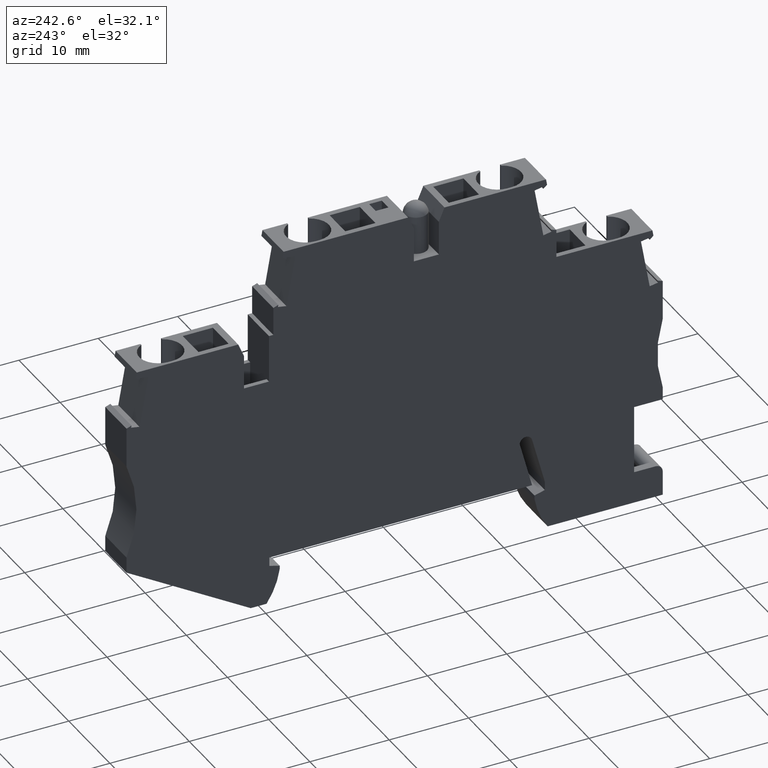
[diagram: clean part render]
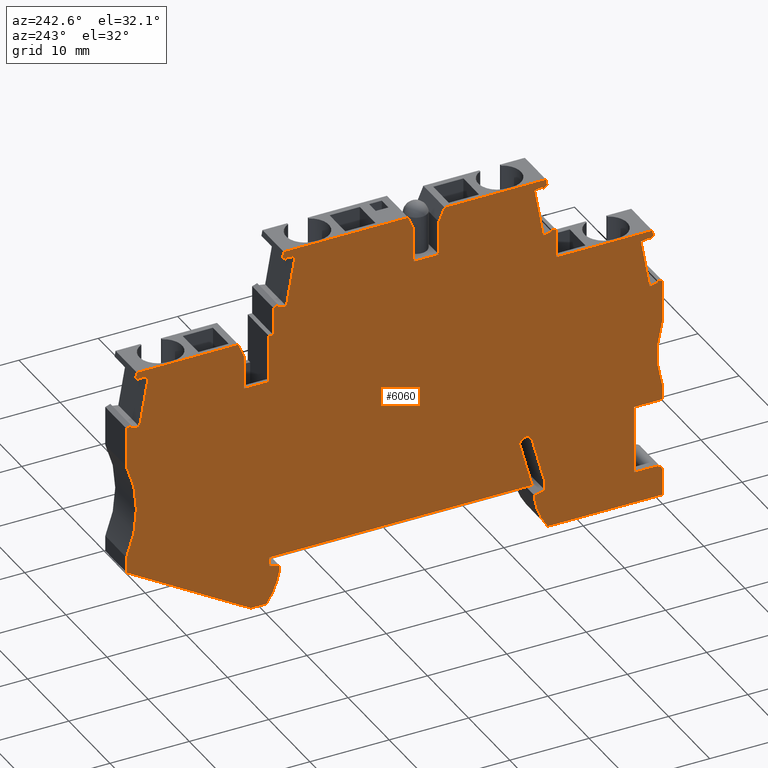
[diagram: same view with one face highlighted and labeled with its STEP entity id]
A machine part, auxiliary view. The second image highlights one B-rep face of the part: STEP entity #6060.
In plain terms, the highlighted planar face has unit normal (1, 0, 0).
Its self-contained STEP definition (entity closure, byte-faithful):
#10=CARTESIAN_POINT('',(184.868635760428,2.4967138221702,48.52));
#20=DIRECTION('',(0.,0.,1.));
#30=DIRECTION('',(1.,0.,0.));
#40=AXIS2_PLACEMENT_3D('',#10,#20,#30);
#50=PLANE('',#40);
#60=CARTESIAN_POINT('',(151.902610356643,2.99671382217021,48.52));
#70=DIRECTION('',(0.25881904510258,0.965925826289053,0.));
#80=VECTOR('',#70,1.);
#90=LINE('',#60,#80);
#100=CARTESIAN_POINT('',(151.768635760428,2.49671382217025,48.52));
#110=VERTEX_POINT('',#100);
#120=CARTESIAN_POINT('',(153.346169499709,8.38414988782211,48.52));
#130=VERTEX_POINT('',#120);
#140=EDGE_CURVE('',#110,#130,#90,.T.);
#150=ORIENTED_EDGE('',*,*,#140,.T.);
#160=CARTESIAN_POINT('',(14.196323,2.49671382217026,48.52));
#170=DIRECTION('',(-1.,6.93889390390723E-17,0.));
#180=VECTOR('',#170,1.);
#190=LINE('',#160,#180);
#200=CARTESIAN_POINT('',(184.868635760428,2.49671382217025,48.52));
#210=VERTEX_POINT('',#200);
#220=EDGE_CURVE('',#210,#110,#190,.T.);
#230=ORIENTED_EDGE('',*,*,#220,.T.);
#240=CARTESIAN_POINT('',(184.868635760428,-15.1764489999999,48.52));
#250=DIRECTION('',(6.93889390390723E-17,1.,0.));
#260=VECTOR('',#250,1.);
#270=LINE('',#240,#260);
#280=CARTESIAN_POINT('',(184.868635760428,1.39671382217034,48.52));
#290=VERTEX_POINT('',#280);
#300=EDGE_CURVE('',#290,#210,#270,.T.);
#310=ORIENTED_EDGE('',*,*,#300,.T.);
#320=CARTESIAN_POINT('',(14.196323,-44.3347945523262,48.52));
#330=DIRECTION('',(0.965925826289086,0.258819045102457,0.));
#340=VECTOR('',#330,1.);
#350=LINE('',#320,#340);
#360=CARTESIAN_POINT('',(183.568635760428,1.04837987200994,48.52));
#370=VERTEX_POINT('',#360);
#380=EDGE_CURVE('',#370,#290,#350,.T.);
#390=ORIENTED_EDGE('',*,*,#380,.T.);
#400=CARTESIAN_POINT('',(183.568635760417,-15.1764489999999,48.52));
#410=DIRECTION('',(6.90295043348499E-13,1.,0.));
#420=VECTOR('',#410,1.);
#430=LINE('',#400,#420);
#440=CARTESIAN_POINT('',(183.568635760428,0.596713822169844,48.52));
#450=VERTEX_POINT('',#440);
#460=EDGE_CURVE('',#450,#370,#430,.T.);
#470=ORIENTED_EDGE('',*,*,#460,.T.);
#480=CARTESIAN_POINT('',(192.962608439804,2.01208561046785,48.52));
#490=DIRECTION('',(0.,0.,-1.));
#500=DIRECTION('',(-1.,6.93889390390723E-17,0.));
#510=AXIS2_PLACEMENT_3D('',#480,#490,#500);
#520=CIRCLE('',#510,9.499999999999);
#530=CARTESIAN_POINT('',(185.22757941356,-3.50328617782973,48.52));
#540=VERTEX_POINT('',#530);
#550=EDGE_CURVE('',#540,#450,#520,.T.);
#560=ORIENTED_EDGE('',*,*,#550,.T.);
#570=CARTESIAN_POINT('',(14.196323,-3.50328617781982,48.52));
#580=DIRECTION('',(-1.,5.79813974610488E-14,0.));
#590=VECTOR('',#580,1.);
#600=LINE('',#570,#590);
#610=CARTESIAN_POINT('',(187.212776734527,-3.50328617782985,48.52));
#620=VERTEX_POINT('',#610);
#630=EDGE_CURVE('',#620,#540,#600,.T.);
#640=ORIENTED_EDGE('',*,*,#630,.T.);
#650=CARTESIAN_POINT('',(14.196323,-105.174575611719,48.52));
#660=DIRECTION('',(-0.862158641431198,-0.5066384085376,0.));
#670=VECTOR('',#660,1.);
#680=LINE('',#650,#670);
#690=CARTESIAN_POINT('',(202.868635760428,5.69671382217545,48.52));
#700=VERTEX_POINT('',#690);
#710=EDGE_CURVE('',#700,#620,#680,.T.);
#720=ORIENTED_EDGE('',*,*,#710,.T.);
#730=CARTESIAN_POINT('',(202.868635760428,-15.1764489999999,48.52));
#740=DIRECTION('',(-1.3062127899644E-16,-1.,0.));
#750=VECTOR('',#740,1.);
#760=LINE('',#730,#750);
#770=CARTESIAN_POINT('',(202.868635760428,7.69671382216893,48.52));
#780=VERTEX_POINT('',#770);
#790=EDGE_CURVE('',#780,#700,#760,.T.);
#800=ORIENTED_EDGE('',*,*,#790,.T.);
#810=CARTESIAN_POINT('',(216.616362845295,13.696713822169,48.52));
#820=DIRECTION('',(0.,0.,1.));
#830=DIRECTION('',(1.,-6.93889390390723E-17,0.));
#840=AXIS2_PLACEMENT_3D('',#810,#820,#830);
#850=CIRCLE('',#840,15.);
#860=CARTESIAN_POINT('',(202.86863574573,19.6967137884929,48.52));
#870=VERTEX_POINT('',#860);
#880=EDGE_CURVE('',#870,#780,#850,.T.);
#890=ORIENTED_EDGE('',*,*,#880,.T.);
#900=CARTESIAN_POINT('',(202.86863574573,-15.1764489999999,48.52));
#910=DIRECTION('',(-6.93889390390723E-17,-1.,0.));
#920=VECTOR('',#910,1.);
#930=LINE('',#900,#920);
#940=CARTESIAN_POINT('',(202.86863574573,24.7030731418167,48.52));
#950=VERTEX_POINT('',#940);
#960=EDGE_CURVE('',#950,#870,#930,.T.);
#970=ORIENTED_EDGE('',*,*,#960,.T.);
#980=CARTESIAN_POINT('',(14.196323,93.3741790099297,48.52));
#990=DIRECTION('',(0.939692620788304,-0.342020143319087,0.));
#1000=VECTOR('',#990,1.);
#1010=LINE('',#980,#1000);
#1020=CARTESIAN_POINT('',(202.235827724333,24.9333964256054,48.52));
#1030=VERTEX_POINT('',#1020);
#1040=EDGE_CURVE('',#1030,#950,#1010,.T.);
#1050=ORIENTED_EDGE('',*,*,#1040,.T.);
#1060=CARTESIAN_POINT('',(209.308275664955,-15.1764489999999,48.52));
#1070=DIRECTION('',(0.173648177667931,-0.984807753012032,0.));
#1080=VECTOR('',#1070,1.);
#1090=LINE('',#1060,#1080);
#1100=CARTESIAN_POINT('',(202.283113446507,24.6652257691104,48.52));
#1110=VERTEX_POINT('',#1100);
#1120=EDGE_CURVE('',#1030,#1110,#1090,.T.);
#1130=ORIENTED_EDGE('',*,*,#1120,.F.);
#1140=CARTESIAN_POINT('',(14.196323,-8.49955010156946,48.52));
#1150=DIRECTION('',(-0.984807753012117,-0.173648177667446,0.));
#1160=VECTOR('',#1150,1.);
#1170=LINE('',#1140,#1160);
#1180=CARTESIAN_POINT('',(201.229369150783,24.479422219006,48.52));
#1190=VERTEX_POINT('',#1180);
#1200=EDGE_CURVE('',#1110,#1190,#1170,.T.);
#1210=ORIENTED_EDGE('',*,*,#1200,.F.);
#1220=CARTESIAN_POINT('',(208.221769190198,-15.1764489999999,48.52));
#1230=DIRECTION('',(0.17364817766702,-0.984807753012192,0.));
#1240=VECTOR('',#1230,1.);
#1250=LINE('',#1220,#1240);
#1260=CARTESIAN_POINT('',(200.131044427039,30.7083312568086,48.52));
#1270=VERTEX_POINT('',#1260);
#1280=EDGE_CURVE('',#1270,#1190,#1250,.T.);
#1290=ORIENTED_EDGE('',*,*,#1280,.T.);
#1300=CARTESIAN_POINT('',(14.196323,-2.07697678126756,48.52));
#1310=DIRECTION('',(0.984807753012229,0.173648177666812,0.));
#1320=VECTOR('',#1310,1.);
#1330=LINE('',#1300,#1320);
#1340=CARTESIAN_POINT('',(201.184788722763,30.8941348069122,48.52));
#1350=VERTEX_POINT('',#1340);
#1360=EDGE_CURVE('',#1270,#1350,#1330,.T.);
#1370=ORIENTED_EDGE('',*,*,#1360,.F.);
#1380=CARTESIAN_POINT('',(209.308275664883,-15.1764489999999,48.52));
#1390=DIRECTION('',(0.173648177666326,-0.984807753012315,0.));
#1400=VECTOR('',#1390,1.);
#1410=LINE('',#1380,#1400);
#1420=CARTESIAN_POINT('',(201.232074444938,30.625964150414,48.52));
#1430=VERTEX_POINT('',#1420);
#1440=EDGE_CURVE('',#1350,#1430,#1410,.T.);
#1450=ORIENTED_EDGE('',*,*,#1440,.F.);
#1460=CARTESIAN_POINT('',(14.196323,-126.315665903762,48.52));
#1470=DIRECTION('',(-0.766044443119454,-0.642787609685972,0.));
#1480=VECTOR('',#1470,1.);
#1490=LINE('',#1460,#1480);
#1500=CARTESIAN_POINT('',(201.70088696831,31.0193445658665,48.52));
#1510=VERTEX_POINT('',#1500);
#1520=EDGE_CURVE('',#1510,#1430,#1490,.T.);
#1530=ORIENTED_EDGE('',*,*,#1520,.T.);
#1540=CARTESIAN_POINT('',(209.846451769164,-15.1764489999999,48.52));
#1550=DIRECTION('',(0.173648177665959,-0.984807753012379,0.));
#1560=VECTOR('',#1550,1.);
#1570=LINE('',#1540,#1560);
#1580=CARTESIAN_POINT('',(201.572632143486,31.7467138221736,48.52));
#1590=VERTEX_POINT('',#1580);
#1600=EDGE_CURVE('',#1590,#1510,#1570,.T.);
#1610=ORIENTED_EDGE('',*,*,#1600,.T.);
#1620=CARTESIAN_POINT('',(14.196323,31.7467138221519,48.52));
#1630=DIRECTION('',(1.,1.15435438985401E-13,0.));
#1640=VECTOR('',#1630,1.);
#1650=LINE('',#1620,#1640);
#1660=CARTESIAN_POINT('',(188.787135479711,31.7467138221721,48.52));
#1670=VERTEX_POINT('',#1660);
#1680=EDGE_CURVE('',#1670,#1590,#1650,.T.);
#1690=ORIENTED_EDGE('',*,*,#1680,.T.);
#1700=CARTESIAN_POINT('',(168.955206470576,-15.1764489999999,48.52));
#1710=DIRECTION('',(-0.389303997086923,-0.921109330021222,0.));
#1720=VECTOR('',#1710,1.);
#1730=LINE('',#1700,#1720);
#1740=CARTESIAN_POINT('',(188.068635451695,30.0467130916932,48.52));
#1750=VERTEX_POINT('',#1740);
#1760=EDGE_CURVE('',#1670,#1750,#1730,.T.);
#1770=ORIENTED_EDGE('',*,*,#1760,.F.);
#1780=CARTESIAN_POINT('',(188.068635451695,-15.1764489999999,48.52));
#1790=DIRECTION('',(-9.18709552877317E-15,1.,0.));
#1800=VECTOR('',#1790,1.);
#1810=LINE('',#1780,#1800);
#1820=CARTESIAN_POINT('',(188.068635451695,25.7467138221752,48.52));
#1830=VERTEX_POINT('',#1820);
#1840=EDGE_CURVE('',#1830,#1750,#1810,.T.);
#1850=ORIENTED_EDGE('',*,*,#1840,.T.);
#1860=CARTESIAN_POINT('',(14.196323,25.7467138221769,48.52));
#1870=DIRECTION('',(-1.,9.92261828258734E-15,0.));
#1880=VECTOR('',#1870,1.);
#1890=LINE('',#1860,#1880);
#1900=CARTESIAN_POINT('',(184.918635451675,25.7467138221752,48.52));
#1910=VERTEX_POINT('',#1900);
#1920=EDGE_CURVE('',#1830,#1910,#1890,.T.);
#1930=ORIENTED_EDGE('',*,*,#1920,.F.);
#1940=CARTESIAN_POINT('',(184.918635451675,-15.1764489999999,48.52));
#1950=DIRECTION('',(2.692290834716E-15,-1.,0.));
#1960=VECTOR('',#1950,1.);
#1970=LINE('',#1940,#1960);
#1980=CARTESIAN_POINT('',(184.918635451675,31.7467138221735,
48.5199999999999));
#1990=VERTEX_POINT('',#1980);
#2000=EDGE_CURVE('',#1990,#1910,#1970,.T.);
#2010=ORIENTED_EDGE('',*,*,#2000,.T.);
#2020=CARTESIAN_POINT('',(184.368635726432,31.7467138221735,
48.5199999999999));
#2030=DIRECTION('',(1.,0.,0.));
#2040=VECTOR('',#2030,1.);
#2050=LINE('',#2020,#2040);
#2060=CARTESIAN_POINT('',(184.368635726432,31.7467138221735,
48.5199999999999));
#2070=VERTEX_POINT('',#2060);
#2080=EDGE_CURVE('',#2070,#1990,#2050,.T.);
#2090=ORIENTED_EDGE('',*,*,#2080,.T.);
#2100=CARTESIAN_POINT('',(184.368635726432,-15.1764489999999,48.52));
#2110=DIRECTION('',(-5.46784839627889E-15,1.,0.));
#2120=VECTOR('',#2110,1.);
#2130=LINE('',#2100,#2120);
#2140=CARTESIAN_POINT('',(184.368635726432,35.3030731488271,48.52));
#2150=VERTEX_POINT('',#2140);
#2160=EDGE_CURVE('',#2070,#2150,#2130,.T.);
#2170=ORIENTED_EDGE('',*,*,#2160,.F.);
#2180=CARTESIAN_POINT('',(14.196323,97.240729676124,48.52));
#2190=DIRECTION('',(0.939692620788329,-0.342020143319018,0.));
#2200=VECTOR('',#2190,1.);
#2210=LINE('',#2180,#2200);
#2220=CARTESIAN_POINT('',(183.735827724316,35.5333964255976,48.52));
#2230=VERTEX_POINT('',#2220);
#2240=EDGE_CURVE('',#2230,#2150,#2210,.T.);
#2250=ORIENTED_EDGE('',*,*,#2240,.T.);
#2260=CARTESIAN_POINT('',(192.677341660458,-15.1764489999999,48.52));
#2270=DIRECTION('',(0.173648177667931,-0.984807753012032,0.));
#2280=VECTOR('',#2270,1.);
#2290=LINE('',#2260,#2280);
#2300=CARTESIAN_POINT('',(183.783113446491,35.2652257691027,48.52));
#2310=VERTEX_POINT('',#2300);
#2320=EDGE_CURVE('',#2230,#2310,#2290,.T.);
#2330=ORIENTED_EDGE('',*,*,#2320,.F.);
#2340=CARTESIAN_POINT('',(14.196323,5.36249904154229,48.52));
#2350=DIRECTION('',(-0.984807753012117,-0.173648177667446,0.));
#2360=VECTOR('',#2350,1.);
#2370=LINE('',#2340,#2360);
#2380=CARTESIAN_POINT('',(182.729369150767,35.0794222189983,48.52));
#2390=VERTEX_POINT('',#2380);
#2400=EDGE_CURVE('',#2310,#2390,#2370,.T.);
#2410=ORIENTED_EDGE('',*,*,#2400,.F.);
#2420=CARTESIAN_POINT('',(191.590835185692,-15.1764489999999,48.52));
#2430=DIRECTION('',(0.173648177667046,-0.984807753012188,0.));
#2440=VECTOR('',#2430,1.);
#2450=LINE('',#2420,#2440);
#2460=CARTESIAN_POINT('',(181.631044427023,41.3083312568009,48.52));
#2470=VERTEX_POINT('',#2460);
#2480=EDGE_CURVE('',#2470,#2390,#2450,.T.);
#2490=ORIENTED_EDGE('',*,*,#2480,.T.);
#2500=CARTESIAN_POINT('',(14.196323,11.7850723618319,48.52));
#2510=DIRECTION('',(0.984807753012229,0.173648177666812,0.));
#2520=VECTOR('',#2510,1.);
#2530=LINE('',#2500,#2520);
#2540=CARTESIAN_POINT('',(182.684788722746,41.4941348069045,48.52));
#2550=VERTEX_POINT('',#2540);
#2560=EDGE_CURVE('',#2470,#2550,#2530,.T.);
#2570=ORIENTED_EDGE('',*,*,#2560,.F.);
#2580=CARTESIAN_POINT('',(192.677341660368,-15.1764489999999,48.52));
#2590=DIRECTION('',(0.173648177666326,-0.984807753012315,0.));
#2600=VECTOR('',#2590,1.);
#2610=LINE('',#2580,#2600);
#2620=CARTESIAN_POINT('',(182.732074444921,41.2259641504061,48.52));
#2630=VERTEX_POINT('',#2620);
#2640=EDGE_CURVE('',#2550,#2630,#2610,.T.);
#2650=ORIENTED_EDGE('',*,*,#2640,.F.);
#2660=CARTESIAN_POINT('',(14.196323,-100.192322726944,48.52));
#2670=DIRECTION('',(-0.76604444311958,-0.642787609685822,0.));
#2680=VECTOR('',#2670,1.);
#2690=LINE('',#2660,#2680);
#2700=CARTESIAN_POINT('',(183.200886968294,41.6193445658591,48.52));
#2710=VERTEX_POINT('',#2700);
#2720=EDGE_CURVE('',#2710,#2630,#2690,.T.);
#2730=ORIENTED_EDGE('',*,*,#2720,.T.);
#2740=CARTESIAN_POINT('',(193.215517764735,-15.1764489999999,48.52));
#2750=DIRECTION('',(0.173648177667472,-0.984807753012113,0.));
#2760=VECTOR('',#2750,1.);
#2770=LINE('',#2740,#2760);
#2780=CARTESIAN_POINT('',(183.072632143469,42.3467138221672,48.52));
#2790=VERTEX_POINT('',#2780);
#2800=EDGE_CURVE('',#2790,#2710,#2770,.T.);
#2810=ORIENTED_EDGE('',*,*,#2800,.T.);
#2820=CARTESIAN_POINT('',(14.196323,42.3467138221477,48.52));
#2830=DIRECTION('',(-1.,-1.15435438985401E-13,0.));
#2840=VECTOR('',#2830,1.);
#2850=LINE('',#2820,#2840);
#2860=CARTESIAN_POINT('',(167.387135170976,42.3467138221654,48.52));
#2870=VERTEX_POINT('',#2860);
#2880=EDGE_CURVE('',#2790,#2870,#2850,.T.);
#2890=ORIENTED_EDGE('',*,*,#2880,.F.);
#2900=CARTESIAN_POINT('',(143.075149088678,-15.1764489999999,48.52));
#2910=DIRECTION('',(-0.389303997086923,-0.921109330021222,0.));
#2920=VECTOR('',#2910,1.);
#2930=LINE('',#2900,#2920);
#2940=CARTESIAN_POINT('',(166.668635451695,40.6467138221657,48.52));
#2950=VERTEX_POINT('',#2940);
#2960=EDGE_CURVE('',#2870,#2950,#2930,.T.);
#2970=ORIENTED_EDGE('',*,*,#2960,.F.);
#2980=CARTESIAN_POINT('',(166.668635451695,-15.1764489999999,48.52));
#2990=DIRECTION('',(-9.18709552877317E-15,1.,0.));
#3000=VECTOR('',#2990,1.);
#3010=LINE('',#2980,#3000);
#3020=CARTESIAN_POINT('',(166.668635451695,36.3467138221752,48.52));
#3030=VERTEX_POINT('',#3020);
#3040=EDGE_CURVE('',#3030,#2950,#3010,.T.);
#3050=ORIENTED_EDGE('',*,*,#3040,.T.);
#3060=CARTESIAN_POINT('',(14.196323,36.3467138221767,48.52));
#3070=DIRECTION('',(-1.,9.92261828258734E-15,0.));
#3080=VECTOR('',#3070,1.);
#3090=LINE('',#3060,#3080);
#3100=CARTESIAN_POINT('',(163.518635451675,36.3467138221752,48.52));
#3110=VERTEX_POINT('',#3100);
#3120=EDGE_CURVE('',#3030,#3110,#3090,.T.);
#3130=ORIENTED_EDGE('',*,*,#3120,.F.);
#3140=CARTESIAN_POINT('',(163.518635451675,-15.1764489999999,48.52));
#3150=DIRECTION('',(2.692290834716E-15,-1.,0.));
#3160=VECTOR('',#3150,1.);
#3170=LINE('',#3140,#3160);
#3180=CARTESIAN_POINT('',(163.518635451675,40.6467138221659,48.52));
#3190=VERTEX_POINT('',#3180);
#3200=EDGE_CURVE('',#3190,#3110,#3170,.T.);
#3210=ORIENTED_EDGE('',*,*,#3200,.T.);
#3220=CARTESIAN_POINT('',(187.112121814692,-15.1764489999999,48.52));
#3230=DIRECTION('',(-0.389303997086923,0.921109330021222,0.));
#3240=VECTOR('',#3230,1.);
#3250=LINE('',#3220,#3240);
#3260=CARTESIAN_POINT('',(162.800135732393,42.3467138221671,48.52));
#3270=VERTEX_POINT('',#3260);
#3280=EDGE_CURVE('',#3190,#3270,#3250,.T.);
#3290=ORIENTED_EDGE('',*,*,#3280,.F.);
#3300=CARTESIAN_POINT('',(14.196323,42.3467138221843,48.52));
#3310=DIRECTION('',(-1.,1.15574216863479E-13,0.));
#3320=VECTOR('',#3310,1.);
#3330=LINE('',#3300,#3320);
#3340=CARTESIAN_POINT('',(150.014638759883,42.3467138221686,48.52));
#3350=VERTEX_POINT('',#3340);
#3360=EDGE_CURVE('',#3270,#3350,#3330,.T.);
#3370=ORIENTED_EDGE('',*,*,#3360,.F.);
#3380=CARTESIAN_POINT('',(139.871753138634,-15.1764489999999,48.52));
#3390=DIRECTION('',(0.173648177667169,0.984807753012166,0.));
#3400=VECTOR('',#3390,1.);
#3410=LINE('',#3380,#3400);
#3420=CARTESIAN_POINT('',(149.886383935057,41.6193445658553,48.52));
#3430=VERTEX_POINT('',#3420);
#3440=EDGE_CURVE('',#3430,#3350,#3410,.T.);
#3450=ORIENTED_EDGE('',*,*,#3440,.T.);
#3460=CARTESIAN_POINT('',(14.196323,155.476824650563,48.52));
#3470=DIRECTION('',(-0.766044443119871,0.642787609685476,0.));
#3480=VECTOR('',#3470,1.);
#3490=LINE('',#3460,#3480);
#3500=CARTESIAN_POINT('',(150.355196458447,41.2259641503885,48.52));
#3510=VERTEX_POINT('',#3500);
#3520=EDGE_CURVE('',#3510,#3430,#3490,.T.);
#3530=ORIENTED_EDGE('',*,*,#3520,.T.);
#3540=CARTESIAN_POINT('',(140.409929243003,-15.1764489999999,48.52));
#3550=DIRECTION('',(0.173648177666326,0.984807753012315,0.));
#3560=VECTOR('',#3550,1.);
#3570=LINE('',#3540,#3560);
#3580=CARTESIAN_POINT('',(150.402482180624,41.4941348069007,48.52));
#3590=VERTEX_POINT('',#3580);
#3600=EDGE_CURVE('',#3510,#3590,#3570,.T.);
#3610=ORIENTED_EDGE('',*,*,#3600,.F.);
#3620=CARTESIAN_POINT('',(14.196323,65.5109556090998,48.52));
#3630=DIRECTION('',(0.984807753012229,-0.173648177666812,0.));
#3640=VECTOR('',#3630,1.);
#3650=LINE('',#3620,#3640);
#3660=CARTESIAN_POINT('',(151.456226476328,41.3083312568005,48.52));
#3670=VERTEX_POINT('',#3660);
#3680=EDGE_CURVE('',#3590,#3670,#3650,.T.);
#3690=ORIENTED_EDGE('',*,*,#3680,.F.);
#3700=CARTESIAN_POINT('',(141.496435717659,-15.1764489999999,48.52));
#3710=DIRECTION('',(0.173648177667041,0.984807753012189,0.));
#3720=VECTOR('',#3710,1.);
#3730=LINE('',#3700,#3720);
#3740=CARTESIAN_POINT('',(150.357901752584,35.0794222189994,48.52));
#3750=VERTEX_POINT('',#3740);
#3760=EDGE_CURVE('',#3750,#3670,#3730,.T.);
#3770=ORIENTED_EDGE('',*,*,#3760,.T.);
#3780=CARTESIAN_POINT('',(14.196323,59.0883822890139,48.52));
#3790=DIRECTION('',(-0.984807753012117,0.173648177667446,0.));
#3800=VECTOR('',#3790,1.);
#3810=LINE('',#3780,#3800);
#3820=CARTESIAN_POINT('',(149.30415745688,35.2652257691004,48.52));
#3830=VERTEX_POINT('',#3820);
#3840=EDGE_CURVE('',#3750,#3830,#3810,.T.);
#3850=ORIENTED_EDGE('',*,*,#3840,.F.);
#3860=CARTESIAN_POINT('',(140.409929242913,-15.1764489999999,48.52));
#3870=DIRECTION('',(0.173648177667931,0.984807753012032,0.));
#3880=VECTOR('',#3870,1.);
#3890=LINE('',#3860,#3880);
#3900=CARTESIAN_POINT('',(149.351443179055,35.5333964256018,48.52));
#3910=VERTEX_POINT('',#3900);
#3920=EDGE_CURVE('',#3830,#3910,#3890,.T.);
#3930=ORIENTED_EDGE('',*,*,#3920,.F.);
#3940=CARTESIAN_POINT('',(14.196323,-13.6590443271737,48.52));
#3950=DIRECTION('',(0.939692620788304,0.342020143319087,0.));
#3960=VECTOR('',#3950,1.);
#3970=LINE('',#3940,#3960);
#3980=CARTESIAN_POINT('',(148.718635176939,35.3030731488308,48.52));
#3990=VERTEX_POINT('',#3980);
#4000=EDGE_CURVE('',#3990,#3910,#3970,.T.);
#4010=ORIENTED_EDGE('',*,*,#4000,.T.);
#4020=CARTESIAN_POINT('',(148.718635176939,-15.1764489999999,48.52));
#4030=DIRECTION('',(6.93889390390723E-17,1.,0.));
#4040=VECTOR('',#4030,1.);
#4050=LINE('',#4020,#4040);
#4060=CARTESIAN_POINT('',(148.718635176939,31.7467138221615,48.52));
#4070=VERTEX_POINT('',#4060);
#4080=EDGE_CURVE('',#4070,#3990,#4050,.T.);
#4090=ORIENTED_EDGE('',*,*,#4080,.T.);
#4100=CARTESIAN_POINT('',(14.196323,31.746713822177,48.52));
#4110=DIRECTION('',(-1.,1.15574216863479E-13,0.));
#4120=VECTOR('',#4110,1.);
#4130=LINE('',#4100,#4120);
#4140=CARTESIAN_POINT('',(136.614638759881,31.7467138221629,48.52));
#4150=VERTEX_POINT('',#4140);
#4160=EDGE_CURVE('',#4070,#4150,#4130,.T.);
#4170=ORIENTED_EDGE('',*,*,#4160,.F.);
#4180=CARTESIAN_POINT('',(128.340819134138,-15.1764489999999,48.52));
#4190=DIRECTION('',(0.173648177667334,0.984807753012137,0.));
#4200=VECTOR('',#4190,1.);
#4210=LINE('',#4180,#4200);
#4220=CARTESIAN_POINT('',(136.486383925749,31.0193445130692,48.52));
#4230=VERTEX_POINT('',#4220);
#4240=EDGE_CURVE('',#4230,#4150,#4210,.T.);
#4250=ORIENTED_EDGE('',*,*,#4240,.T.);
#4260=CARTESIAN_POINT('',(14.196323,133.632889532351,48.52));
#4270=DIRECTION('',(-0.766044443119474,0.642787609685948,0.));
#4280=VECTOR('',#4270,1.);
#4290=LINE('',#4260,#4280);
#4300=CARTESIAN_POINT('',(136.955196718064,30.6259638719466,48.52));
#4310=VERTEX_POINT('',#4300);
#4320=EDGE_CURVE('',#4310,#4230,#4290,.T.);
#4330=ORIENTED_EDGE('',*,*,#4320,.T.);
#4340=CARTESIAN_POINT('',(128.87899554722,-15.1764489999999,48.52));
#4350=DIRECTION('',(0.173648177666326,0.984807753012315,0.));
#4360=VECTOR('',#4350,1.);
#4370=LINE('',#4340,#4360);
#4380=CARTESIAN_POINT('',(137.002482480031,30.8941347541144,48.52));
#4390=VERTEX_POINT('',#4380);
#4400=EDGE_CURVE('',#4310,#4390,#4370,.T.);
#4410=ORIENTED_EDGE('',*,*,#4400,.F.);
#4420=CARTESIAN_POINT('',(14.196323,52.5481740676152,48.52));
#4430=DIRECTION('',(0.984807753012229,-0.173648177666812,0.));
#4440=VECTOR('',#4430,1.);
#4450=LINE('',#4420,#4440);
#4460=CARTESIAN_POINT('',(138.056226476329,30.7083312568075,48.52));
#4470=VERTEX_POINT('',#4460);
#4480=EDGE_CURVE('',#4390,#4470,#4450,.T.);
#4490=ORIENTED_EDGE('',*,*,#4480,.F.);
#4500=CARTESIAN_POINT('',(129.96550171317,-15.1764489999999,48.52));
#4510=DIRECTION('',(0.173648177667023,0.984807753012192,0.));
#4520=VECTOR('',#4510,1.);
#4530=LINE('',#4500,#4520);
#4540=CARTESIAN_POINT('',(136.957901752586,24.4794222190064,48.52));
#4550=VERTEX_POINT('',#4540);
#4560=EDGE_CURVE('',#4550,#4470,#4530,.T.);
#4570=ORIENTED_EDGE('',*,*,#4560,.T.);
#4580=CARTESIAN_POINT('',(14.196323,46.1256007475204,48.52));
#4590=DIRECTION('',(-0.984807753012117,0.173648177667446,0.));
#4600=VECTOR('',#4590,1.);
#4610=LINE('',#4580,#4600);
#4620=CARTESIAN_POINT('',(135.904157756286,24.6652257163141,48.52));
#4630=VERTEX_POINT('',#4620);
#4640=EDGE_CURVE('',#4550,#4630,#4610,.T.);
#4650=ORIENTED_EDGE('',*,*,#4640,.F.);
#4660=CARTESIAN_POINT('',(128.878995547148,-15.1764489999999,48.52));
#4670=DIRECTION('',(0.173648177667931,0.984807753012032,0.));
#4680=VECTOR('',#4670,1.);
#4690=LINE('',#4660,#4680);
#4700=CARTESIAN_POINT('',(135.951443499635,24.9333964928844,48.52));
#4710=VERTEX_POINT('',#4700);
#4720=EDGE_CURVE('',#4630,#4710,#4690,.T.);
#4730=ORIENTED_EDGE('',*,*,#4720,.F.);
#4740=CARTESIAN_POINT('',(14.196323,-19.3818432374781,48.52));
#4750=DIRECTION('',(0.939692620788387,0.342020143318859,0.));
#4760=VECTOR('',#4750,1.);
#4770=LINE('',#4740,#4760);
#4780=CARTESIAN_POINT('',(135.318635774393,24.7030733168879,48.52));
#4790=VERTEX_POINT('',#4780);
#4800=EDGE_CURVE('',#4790,#4710,#4770,.T.);
#4810=ORIENTED_EDGE('',*,*,#4800,.T.);
#4820=CARTESIAN_POINT('',(135.318635774393,-15.1764489999999,48.52));
#4830=DIRECTION('',(6.93889390390723E-17,1.,0.));
#4840=VECTOR('',#4830,1.);
#4850=LINE('',#4820,#4840);
#4860=CARTESIAN_POINT('',(135.318635774393,19.6967137777627,48.52));
#4870=VERTEX_POINT('',#4860);
#4880=EDGE_CURVE('',#4870,#4790,#4850,.T.);
#4890=ORIENTED_EDGE('',*,*,#4880,.T.);
#4900=CARTESIAN_POINT('',(121.009547739174,15.1967138221689,48.52));
#4910=DIRECTION('',(0.,0.,1.));
#4920=DIRECTION('',(1.,-6.93889390390723E-17,0.));
#4930=AXIS2_PLACEMENT_3D('',#4900,#4910,#4920);
#4940=CIRCLE('',#4930,15.);
#4950=CARTESIAN_POINT('',(135.318635760428,10.696713822169,48.52));
#4960=VERTEX_POINT('',#4950);
#4970=EDGE_CURVE('',#4960,#4870,#4940,.T.);
#4980=ORIENTED_EDGE('',*,*,#4970,.T.);
#4990=CARTESIAN_POINT('',(135.318635760428,-15.1764489999999,48.52));
#5000=DIRECTION('',(-1.98452365651747E-15,1.,0.));
#5010=VECTOR('',#5000,1.);
#5020=LINE('',#4990,#5010);
#5030=CARTESIAN_POINT('',(135.318635760428,9.09671382217083,48.52));
#5040=VERTEX_POINT('',#5030);
#5050=EDGE_CURVE('',#5040,#4960,#5020,.T.);
#5060=ORIENTED_EDGE('',*,*,#5050,.T.);
#5070=CARTESIAN_POINT('',(14.196323,9.09671382217084,48.52));
#5080=DIRECTION('',(-1.,6.93889390390723E-17,0.));
#5090=VECTOR('',#5080,1.);
#5100=LINE('',#5070,#5090);
#5110=CARTESIAN_POINT('',(138.918635451691,9.09671382217083,48.52));
#5120=VERTEX_POINT('',#5110);
#5130=EDGE_CURVE('',#5120,#5040,#5100,.T.);
#5140=ORIENTED_EDGE('',*,*,#5130,.T.);
#5150=CARTESIAN_POINT('',(138.918635451691,-15.1764489999999,48.52));
#5160=DIRECTION('',(6.93889390390723E-17,1.,0.));
#5170=VECTOR('',#5160,1.);
#5180=LINE('',#5150,#5170);
#5190=CARTESIAN_POINT('',(138.918635451691,0.496713822169902,48.52));
#5200=VERTEX_POINT('',#5190);
#5210=EDGE_CURVE('',#5200,#5120,#5180,.T.);
#5220=ORIENTED_EDGE('',*,*,#5210,.T.);
#5230=CARTESIAN_POINT('',(136.218635451692,0.496713822169902,48.52));
#5240=DIRECTION('',(1.,0.,0.));
#5250=VECTOR('',#5240,1.);
#5260=LINE('',#5230,#5250);
#5270=CARTESIAN_POINT('',(136.218635451692,0.496713822169898,48.52));
#5280=VERTEX_POINT('',#5270);
#5290=EDGE_CURVE('',#5280,#5200,#5260,.T.);
#5300=ORIENTED_EDGE('',*,*,#5290,.T.);
#5310=CARTESIAN_POINT('',(136.218635451692,-0.403286177829942,48.52));
#5320=DIRECTION('',(0.,0.,1.));
#5330=DIRECTION('',(1.,-6.93889390390723E-17,0.));
#5340=AXIS2_PLACEMENT_3D('',#5310,#5320,#5330);
#5350=CIRCLE('',#5340,0.89999999999984);
#5360=CARTESIAN_POINT('',(135.318635451692,-0.403286177829941,48.52));
#5370=VERTEX_POINT('',#5360);
#5380=EDGE_CURVE('',#5280,#5370,#5350,.T.);
#5390=ORIENTED_EDGE('',*,*,#5380,.F.);
#5400=CARTESIAN_POINT('',(135.318635451686,-15.1764489999999,48.52));
#5410=DIRECTION('',(3.85792588351647E-13,1.,0.));
#5420=VECTOR('',#5410,1.);
#5430=LINE('',#5400,#5420);
#5440=CARTESIAN_POINT('',(135.318635451691,-3.50328617783001,48.52));
#5450=VERTEX_POINT('',#5440);
#5460=EDGE_CURVE('',#5450,#5370,#5430,.T.);
#5470=ORIENTED_EDGE('',*,*,#5460,.T.);
#5480=CARTESIAN_POINT('',(14.196323,-3.50328617783188,48.52));
#5490=DIRECTION('',(-1.,-1.54289738893123E-14,0.));
#5500=VECTOR('',#5490,1.);
#5510=LINE('',#5480,#5500);
#5520=CARTESIAN_POINT('',(149.809692107295,-3.50328617782979,48.52));
#5530=VERTEX_POINT('',#5520);
#5540=EDGE_CURVE('',#5530,#5450,#5510,.T.);
#5550=ORIENTED_EDGE('',*,*,#5540,.T.);
#5560=CARTESIAN_POINT('',(142.074663081051,2.01208561046785,48.52));
#5570=DIRECTION('',(0.,0.,1.));
#5580=DIRECTION('',(1.,-6.93889390390723E-17,0.));
#5590=AXIS2_PLACEMENT_3D('',#5560,#5570,#5580);
#5600=CIRCLE('',#5590,9.49999999999899);
#5610=CARTESIAN_POINT('',(151.468635760428,0.596713822169507,48.52));
#5620=VERTEX_POINT('',#5610);
#5630=EDGE_CURVE('',#5530,#5620,#5600,.T.);
#5640=ORIENTED_EDGE('',*,*,#5630,.F.);
#5650=CARTESIAN_POINT('',(151.468635760438,-15.1764489999999,48.52));
#5660=DIRECTION('',(6.29194409844522E-13,-1.,0.));
#5670=VECTOR('',#5660,1.);
#5680=LINE('',#5650,#5670);
#5690=CARTESIAN_POINT('',(151.468635760427,1.04837987200994,48.52));
#5700=VERTEX_POINT('',#5690);
#5710=EDGE_CURVE('',#5700,#5620,#5680,.T.);
#5720=ORIENTED_EDGE('',*,*,#5710,.T.);
#5730=CARTESIAN_POINT('',(14.196323,37.8303852193346,48.52));
#5740=DIRECTION('',(0.965925826289041,-0.258819045102623,0.));
#5750=VECTOR('',#5740,1.);
#5760=LINE('',#5730,#5750);
#5770=CARTESIAN_POINT('',(150.168635760428,1.39671382217036,48.52));
#5780=VERTEX_POINT('',#5770);
#5790=EDGE_CURVE('',#5780,#5700,#5760,.T.);
#5800=ORIENTED_EDGE('',*,*,#5790,.T.);
#5810=CARTESIAN_POINT('',(150.168635760428,-15.1764489999999,48.52));
#5820=DIRECTION('',(-6.93889390390723E-17,-1.,0.));
#5830=VECTOR('',#5820,1.);
#5840=LINE('',#5810,#5830);
#5850=CARTESIAN_POINT('',(150.168635760428,2.4967138221786,48.52));
#5860=VERTEX_POINT('',#5850);
#5870=EDGE_CURVE('',#5860,#5780,#5840,.T.);
#5880=ORIENTED_EDGE('',*,*,#5870,.T.);
#5890=CARTESIAN_POINT('',(145.433126054518,-15.1764489999999,48.52));
#5900=DIRECTION('',(0.258819045102718,0.965925826289016,0.));
#5910=VECTOR('',#5900,1.);
#5920=LINE('',#5890,#5910);
#5930=CARTESIAN_POINT('',(151.778221359825,8.5037690582528,48.52));
#5940=VERTEX_POINT('',#5930);
#5950=EDGE_CURVE('',#5860,#5940,#5920,.T.);
#5960=ORIENTED_EDGE('',*,*,#5950,.F.);
#5970=CARTESIAN_POINT('',(152.550962020857,8.29671382217025,48.52));
#5980=DIRECTION('',(0.,0.,1.));
#5990=DIRECTION('',(1.,-6.93889390390723E-17,0.));
#6000=AXIS2_PLACEMENT_3D('',#5970,#5980,#5990);
#6010=CIRCLE('',#6000,0.80000000000001);
#6020=EDGE_CURVE('',#130,#5940,#6010,.T.);
#6030=ORIENTED_EDGE('',*,*,#6020,.T.);
#6040=EDGE_LOOP('',(#6030,#5960,#5880,#5800,#5720,#5640,#5550,#5470,
#5390,#5300,#5220,#5140,#5060,#4980,#4890,#4810,#4730,#4650,#4570,#4490,
#4410,#4330,#4250,#4170,#4090,#4010,#3930,#3850,#3770,#3690,#3610,#3530,
#3450,#3370,#3290,#3210,#3130,#3050,#2970,#2890,#2810,#2730,#2650,#2570,
#2490,#2410,#2330,#2250,#2170,#2090,#2010,#1930,#1850,#1770,#1690,#1610,
#1530,#1450,#1370,#1290,#1210,#1130,#1050,#970,#890,#800,#720,#640,#560,
#470,#390,#310,#230,#150));
#6050=FACE_OUTER_BOUND('',#6040,.T.);
#6060=ADVANCED_FACE('',(#6050),#50,.F.);